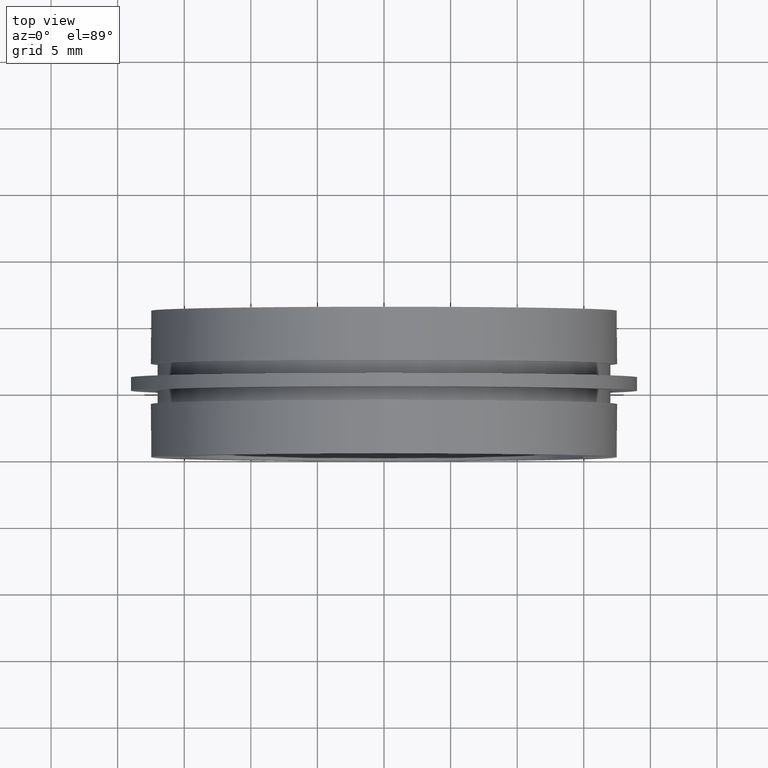
[diagram: clean part render]
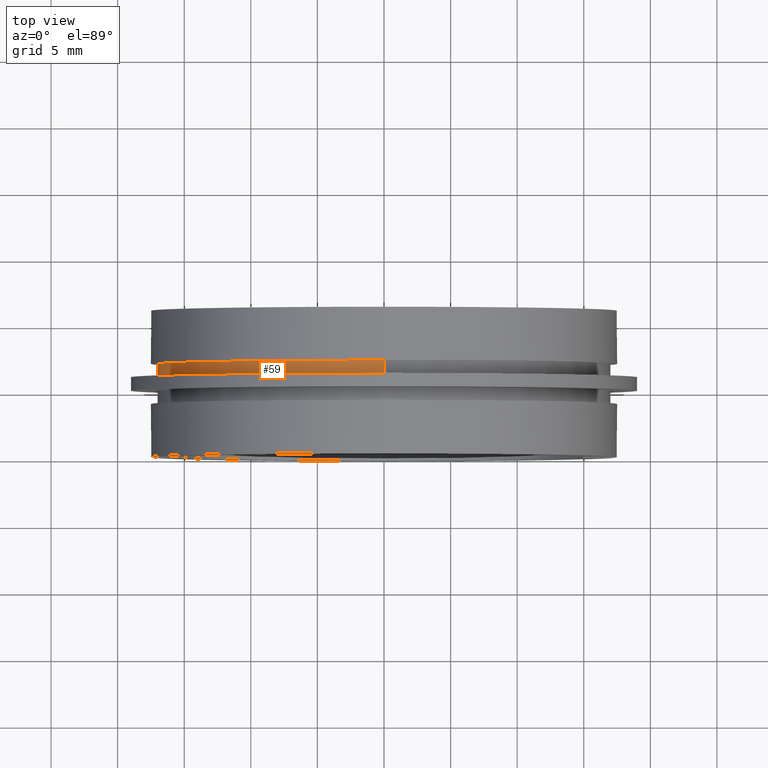
[diagram: same view with one face highlighted and labeled with its STEP entity id]
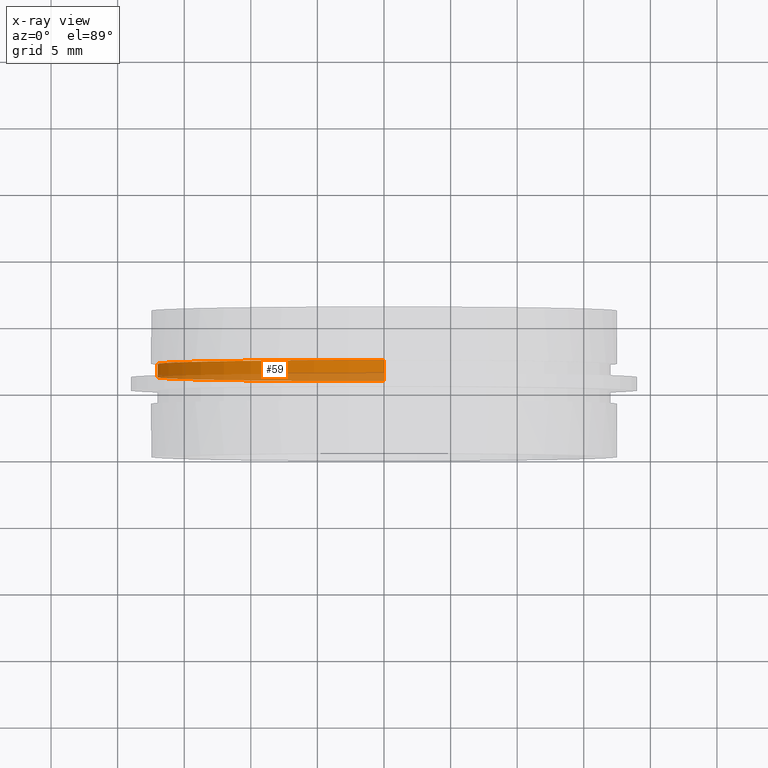
[diagram: x-ray of the same camera — body ghosted, the highlighted face saturated]
A machine part, top view. The second image highlights one B-rep face of the part: STEP entity #59.
The next image is the same camera in x-ray: the body ghosted, the highlighted face saturated — about 32% of this face is hidden behind the body in this view.
In plain terms, the highlighted cylindrical surface (partial cylindrical patch) has radius 17 mm, axis along (-0, 1, -0).
Its self-contained STEP definition (entity closure, byte-faithful):
#43 = ORIENTED_EDGE ( 'NONE', *, *, #884, .T. ) ;
#58 = DIRECTION ( 'NONE',  ( -0.0000000000000000000, 1.000000000000000000, -0.0000000000000000000 ) ) ;
#59 = ADVANCED_FACE ( 'NONE', ( #1018 ), #843, .T. ) ;
#77 = CARTESIAN_POINT ( 'NONE',  ( 0.0000000000000000000, 6.999999999999999100, 17.00000000000000400 ) ) ;
#83 = CARTESIAN_POINT ( 'NONE',  ( 2.081899558550500300E-015, 22.67749945107591400, -17.00000000000000000 ) ) ;
#115 = DIRECTION ( 'NONE',  ( 0.0000000000000000000, 0.0000000000000000000, 1.000000000000000000 ) ) ;
#137 = DIRECTION ( 'NONE',  ( -0.0000000000000000000, 1.000000000000000000, -0.0000000000000000000 ) ) ;
#190 = VERTEX_POINT ( 'NONE', #420 ) ;
#260 = EDGE_CURVE ( 'NONE', #413, #829, #665, .T. ) ;
#286 = LINE ( 'NONE', #83, #905 ) ;
#287 = AXIS2_PLACEMENT_3D ( 'NONE', #977, #361, #874 ) ;
#290 = CARTESIAN_POINT ( 'NONE',  ( 0.0000000000000000000, 5.999999999999998200, 0.0000000000000000000 ) ) ;
#308 = EDGE_LOOP ( 'NONE', ( #934, #43, #573, #982 ) ) ;
#335 = CARTESIAN_POINT ( 'NONE',  ( 0.0000000000000000000, 5.999999999999998200, 17.00000000000000000 ) ) ;
#361 = DIRECTION ( 'NONE',  ( -0.0000000000000000000, 1.000000000000000000, -0.0000000000000000000 ) ) ;
#398 = DIRECTION ( 'NONE',  ( -0.0000000000000000000, 1.000000000000000000, -0.0000000000000000000 ) ) ;
#413 = VERTEX_POINT ( 'NONE', #1140 ) ;
#420 = CARTESIAN_POINT ( 'NONE',  ( 2.081899558550500300E-015, 5.999999999999998200, -17.00000000000000000 ) ) ;
#549 = AXIS2_PLACEMENT_3D ( 'NONE', #569, #58, #1106 ) ;
#569 = CARTESIAN_POINT ( 'NONE',  ( 0.0000000000000000000, 22.67749945107591400, 0.0000000000000000000 ) ) ;
#573 = ORIENTED_EDGE ( 'NONE', *, *, #1088, .T. ) ;
#649 = VECTOR ( 'NONE', #137, 1000.000000000000000 ) ;
#665 = CIRCLE ( 'NONE', #287, 17.00000000000000400 ) ;
#686 = CARTESIAN_POINT ( 'NONE',  ( 0.0000000000000000000, 22.67749945107591400, 17.00000000000000000 ) ) ;
#709 = VERTEX_POINT ( 'NONE', #335 ) ;
#753 = EDGE_CURVE ( 'NONE', #190, #413, #286, .T. ) ;
#770 = LINE ( 'NONE', #686, #649 ) ;
#829 = VERTEX_POINT ( 'NONE', #77 ) ;
#843 = CYLINDRICAL_SURFACE ( 'NONE', #549, 17.00000000000000000 ) ;
#874 = DIRECTION ( 'NONE',  ( 0.0000000000000000000, 0.0000000000000000000, 1.000000000000000000 ) ) ;
#884 = EDGE_CURVE ( 'NONE', #190, #709, #1066, .T. ) ;
#901 = DIRECTION ( 'NONE',  ( -0.0000000000000000000, 1.000000000000000000, -0.0000000000000000000 ) ) ;
#905 = VECTOR ( 'NONE', #398, 1000.000000000000000 ) ;
#934 = ORIENTED_EDGE ( 'NONE', *, *, #753, .F. ) ;
#959 = AXIS2_PLACEMENT_3D ( 'NONE', #290, #901, #115 ) ;
#977 = CARTESIAN_POINT ( 'NONE',  ( 0.0000000000000000000, 6.999999999999999100, 0.0000000000000000000 ) ) ;
#982 = ORIENTED_EDGE ( 'NONE', *, *, #260, .F. ) ;
#1018 = FACE_OUTER_BOUND ( 'NONE', #308, .T. ) ;
#1066 = CIRCLE ( 'NONE', #959, 17.00000000000000000 ) ;
#1088 = EDGE_CURVE ( 'NONE', #709, #829, #770, .T. ) ;
#1106 = DIRECTION ( 'NONE',  ( 0.0000000000000000000, 0.0000000000000000000, 1.000000000000000000 ) ) ;
#1140 = CARTESIAN_POINT ( 'NONE',  ( 2.081899558550500700E-015, 6.999999999999999100, -17.00000000000000400 ) ) ;